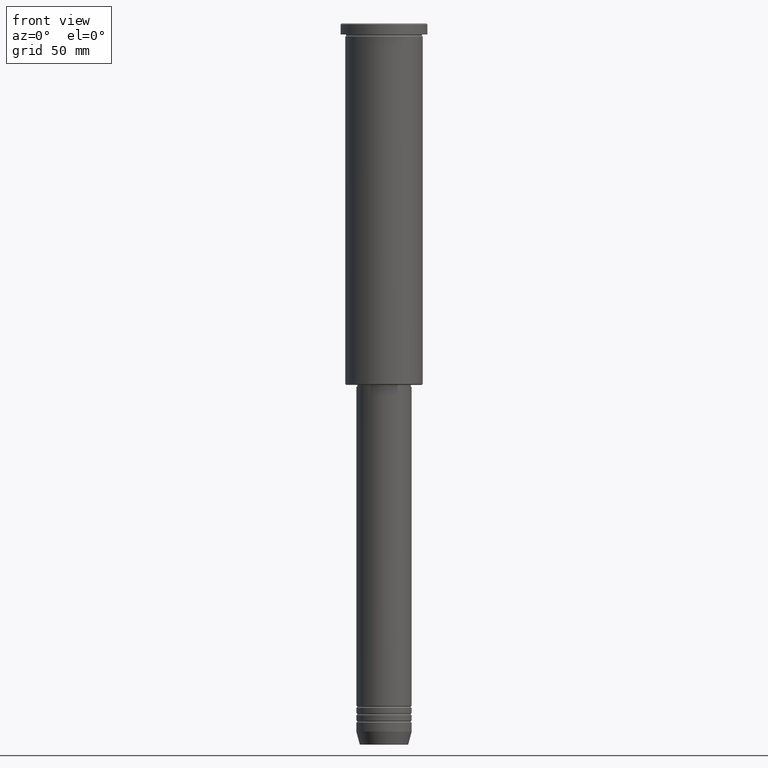
[diagram: clean part render]
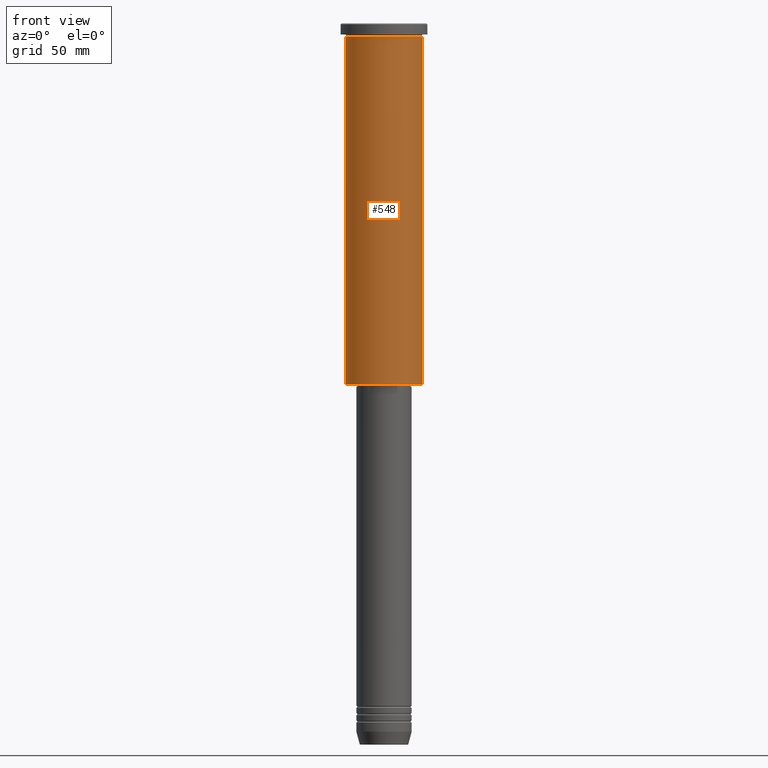
[diagram: same view with one face highlighted and labeled with its STEP entity id]
A machine part, front view. The second image highlights one B-rep face of the part: STEP entity #548.
In plain terms, the highlighted cylindrical surface (partial cylindrical patch) has radius 21 mm, axis along (-0, -0, 1).
Its self-contained STEP definition (entity closure, byte-faithful):
#14 = ORIENTED_EDGE ( 'NONE', *, *, #783, .F. ) ;
#16 = CYLINDRICAL_SURFACE ( 'NONE', #259, 21.00000000000000000 ) ;
#30 = AXIS2_PLACEMENT_3D ( 'NONE', #329, #1162, #422 ) ;
#69 = VERTEX_POINT ( 'NONE', #873 ) ;
#189 = VERTEX_POINT ( 'NONE', #438 ) ;
#204 = AXIS2_PLACEMENT_3D ( 'NONE', #550, #560, #921 ) ;
#245 = CARTESIAN_POINT ( 'NONE',  ( 21.00000000000000000, 0.000000000000000000, 0.000000000000000000 ) ) ;
#259 = AXIS2_PLACEMENT_3D ( 'NONE', #1039, #381, #756 ) ;
#329 = CARTESIAN_POINT ( 'NONE',  ( 0.000000000000000000, 0.000000000000000000, -195.5000000000001137 ) ) ;
#381 = DIRECTION ( 'NONE',  ( -0.000000000000000000, -0.000000000000000000, 1.000000000000000000 ) ) ;
#396 = EDGE_LOOP ( 'NONE', ( #14, #1072, #952, #1085 ) ) ;
#422 = DIRECTION ( 'NONE',  ( -1.000000000000000000, 0.000000000000000000, 0.000000000000000000 ) ) ;
#433 = VERTEX_POINT ( 'NONE', #953 ) ;
#438 = CARTESIAN_POINT ( 'NONE',  ( -21.00000000000000000, 2.571758278209441661E-15, -6.999999999999993783 ) ) ;
#515 = LINE ( 'NONE', #245, #898 ) ;
#548 = ADVANCED_FACE ( 'NONE', ( #750 ), #16, .T. ) ;
#550 = CARTESIAN_POINT ( 'NONE',  ( 0.000000000000000000, 0.000000000000000000, -6.999999999999993783 ) ) ;
#560 = DIRECTION ( 'NONE',  ( -0.000000000000000000, -0.000000000000000000, 1.000000000000000000 ) ) ;
#604 = CARTESIAN_POINT ( 'NONE',  ( -21.00000000000000000, 2.571758278209441661E-15, -195.5000000000001137 ) ) ;
#623 = CARTESIAN_POINT ( 'NONE',  ( -21.00000000000000000, 2.571758278209441661E-15, 0.000000000000000000 ) ) ;
#682 = EDGE_CURVE ( 'NONE', #433, #69, #515, .T. ) ;
#705 = DIRECTION ( 'NONE',  ( -0.000000000000000000, -0.000000000000000000, 1.000000000000000000 ) ) ;
#750 = FACE_OUTER_BOUND ( 'NONE', #396, .T. ) ;
#756 = DIRECTION ( 'NONE',  ( 1.000000000000000000, 0.000000000000000000, 0.000000000000000000 ) ) ;
#758 = VERTEX_POINT ( 'NONE', #604 ) ;
#783 = EDGE_CURVE ( 'NONE', #758, #189, #962, .T. ) ;
#797 = EDGE_CURVE ( 'NONE', #758, #433, #1013, .T. ) ;
#873 = CARTESIAN_POINT ( 'NONE',  ( 21.00000000000000000, 0.000000000000000000, -6.999999999999993783 ) ) ;
#886 = DIRECTION ( 'NONE',  ( -0.000000000000000000, -0.000000000000000000, 1.000000000000000000 ) ) ;
#898 = VECTOR ( 'NONE', #705, 1000.000000000000000 ) ;
#921 = DIRECTION ( 'NONE',  ( 1.000000000000000000, 0.000000000000000000, 0.000000000000000000 ) ) ;
#952 = ORIENTED_EDGE ( 'NONE', *, *, #682, .T. ) ;
#953 = CARTESIAN_POINT ( 'NONE',  ( 21.00000000000000000, 0.000000000000000000, -195.5000000000001137 ) ) ;
#962 = LINE ( 'NONE', #623, #980 ) ;
#980 = VECTOR ( 'NONE', #886, 1000.000000000000000 ) ;
#993 = EDGE_CURVE ( 'NONE', #189, #69, #1082, .T. ) ;
#1013 = CIRCLE ( 'NONE', #30, 21.00000000000000000 ) ;
#1039 = CARTESIAN_POINT ( 'NONE',  ( 0.000000000000000000, 0.000000000000000000, 0.000000000000000000 ) ) ;
#1072 = ORIENTED_EDGE ( 'NONE', *, *, #797, .T. ) ;
#1082 = CIRCLE ( 'NONE', #204, 21.00000000000000000 ) ;
#1085 = ORIENTED_EDGE ( 'NONE', *, *, #993, .F. ) ;
#1162 = DIRECTION ( 'NONE',  ( -0.000000000000000000, -0.000000000000000000, 1.000000000000000000 ) ) ;